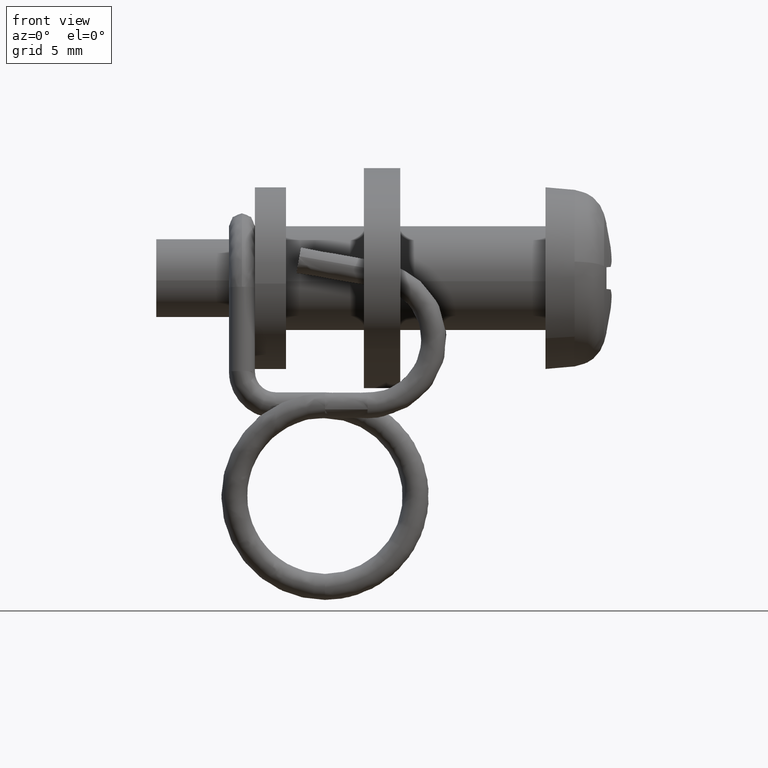
[diagram: clean part render]
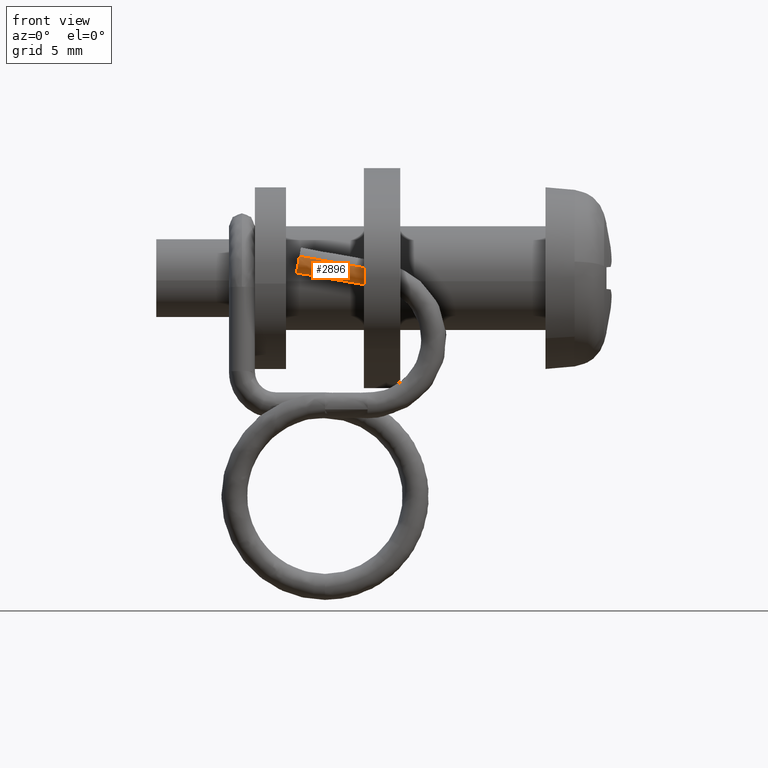
[diagram: same view with one face highlighted and labeled with its STEP entity id]
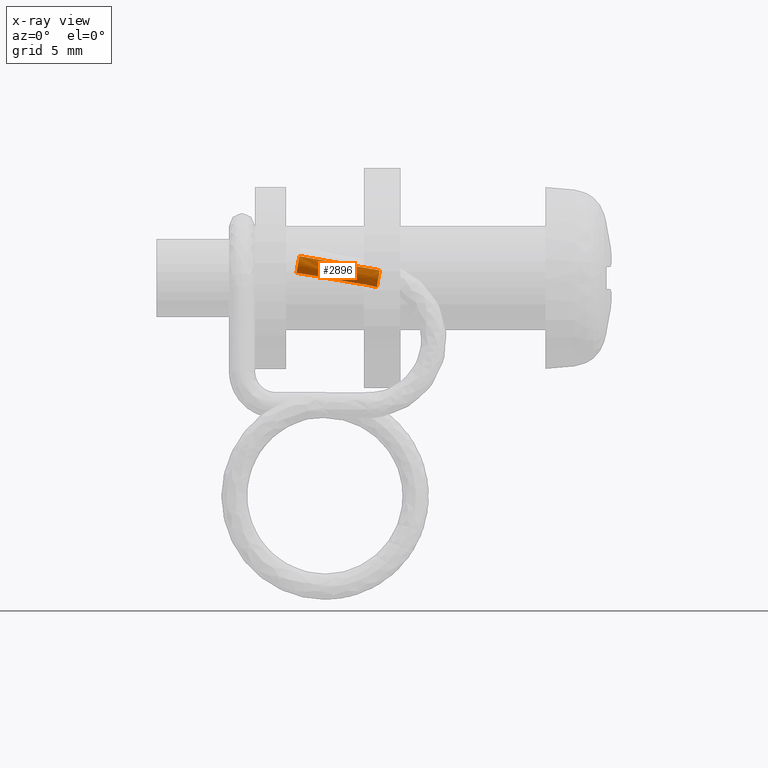
[diagram: x-ray of the same camera — body ghosted, the highlighted face saturated]
A machine part, front view. The second image highlights one B-rep face of the part: STEP entity #2896.
The next image is the same camera in x-ray: the body ghosted, the highlighted face saturated — about 0% of this face is hidden behind the body in this view.
In plain terms, the highlighted face is a freeform B-spline surface patch.
Its self-contained STEP definition (entity closure, byte-faithful):
#2686=CARTESIAN_POINT('',(-9.593723726786740,-4.278956213103814,0.230942369601642));
#2687=VERTEX_POINT('',#2686);
#2688=CARTESIAN_POINT('',(-9.485742573667952,-4.565768063297207,0.843767149737986));
#2689=VERTEX_POINT('',#2688);
#2690=CARTESIAN_POINT('',(-9.593723726786740,-4.278956213103814,0.230942369601642));
#2691=CARTESIAN_POINT('',(-9.563234315669838,-4.715046186978310,0.404514879092870));
#2692=CARTESIAN_POINT('',(-9.485742573667952,-4.565768063297207,0.843767149737986));
#2700=(BOUNDED_CURVE()B_SPLINE_CURVE(2,(#2690,#2691,#2692),.UNSPECIFIED.,.F.,.U.)B_SPLINE_CURVE_WITH_KNOTS((3,3),(0.0,0.239332771310247),.UNSPECIFIED.)CURVE()GEOMETRIC_REPRESENTATION_ITEM()RATIONAL_B_SPLINE_CURVE((1.0,0.719604216973591,0.976071632470520))REPRESENTATION_ITEM(''));
#2701=EDGE_CURVE('',#2687,#2689,#2700,.T.);
#2720=CARTESIAN_POINT('',(-9.540609303711973,-3.617467980443404,0.531170612980902));
#2721=VERTEX_POINT('',#2720);
#2735=CARTESIAN_POINT('',(-9.540609303711973,-3.617467980443404,0.531170612980902));
#2736=CARTESIAN_POINT('',(-9.543126171066522,-3.622316409792601,0.516904064419226));
#2737=CARTESIAN_POINT('',(-9.545587173177125,-3.628040212952389,0.502955665145589));
#2738=CARTESIAN_POINT('',(-9.626134961273946,-3.815378404186064,0.046429153387529));
#2739=CARTESIAN_POINT('',(-9.593723726786740,-4.278956213103814,0.230942369601642));
#2747=(BOUNDED_CURVE()B_SPLINE_CURVE(2,(#2735,#2736,#2737,#2738,#2739),.UNSPECIFIED.,.F.,.U.)B_SPLINE_CURVE_WITH_KNOTS((3,2,3),(0.739332771310455,0.750000000000000,1.0),.UNSPECIFIED.)CURVE()GEOMETRIC_REPRESENTATION_ITEM()RATIONAL_B_SPLINE_CURVE((0.976071632470965,0.987502564213199,1.0,0.707106781186548,1.0))REPRESENTATION_ITEM(''));
#2748=EDGE_CURVE('',#2721,#2687,#2747,.T.);
#2794=CARTESIAN_POINT('',(-6.388901196909250,-4.566524686647446,0.297688885898468));
#2795=VERTEX_POINT('',#2794);
#2807=CARTESIAN_POINT('',(-6.443760522140609,-3.618360234748804,-0.014865451289451));
#2808=VERTEX_POINT('',#2807);
#2816=CARTESIAN_POINT('',(-6.443760522140609,-3.618360234748804,-0.014865451289451));
#2817=CARTESIAN_POINT('',(-9.540609303711973,-3.617467980443404,0.531170612980902));
#2818=QUASI_UNIFORM_CURVE('',1,(#2816,#2817),.UNSPECIFIED.,.F.,.U.);
#2819=EDGE_CURVE('',#2808,#2721,#2818,.T.);
#2823=CARTESIAN_POINT('',(-6.388901196909250,-4.566524686647446,0.297688885898468));
#2824=CARTESIAN_POINT('',(-9.485742573667952,-4.565768063297207,0.843767149737986));
#2825=QUASI_UNIFORM_CURVE('',1,(#2823,#2824),.UNSPECIFIED.,.F.,.U.);
#2826=EDGE_CURVE('',#2795,#2689,#2825,.T.);
#2831=CARTESIAN_POINT('',(-6.366304047308030,-3.618186971171433,-0.028316705399063));
#2832=CARTESIAN_POINT('',(-6.393120766162486,-3.667267625193502,-0.180327823082227));
#2833=CARTESIAN_POINT('',(-6.413130237330899,-3.787694061289801,-0.293625390017197));
#2834=CARTESIAN_POINT('',(-6.426901986720364,-3.932346140325045,-0.371510491316865));
#2835=CARTESIAN_POINT('',(-6.429187064619587,-4.100574365965165,-0.384215824793501));
#2836=CARTESIAN_POINT('',(-6.412746862762512,-4.401258038067103,-0.290524803260772));
#2837=CARTESIAN_POINT('',(-6.391843732353269,-4.525487538077919,-0.171789658960313));
#2838=CARTESIAN_POINT('',(-6.367120834617956,-4.594072610417007,-0.031475542720456));
#2839=CARTESIAN_POINT('',(-6.337720606760845,-4.615933719741551,0.135294495487195));
#2840=CARTESIAN_POINT('',(-6.311424578907169,-4.566664945118926,0.284352342773734));
#2841=CARTESIAN_POINT('',(-7.450850601540298,-3.618119689250841,0.162885636432810));
#2842=CARTESIAN_POINT('',(-7.475878523241766,-3.672047279946746,0.021026612756482));
#2843=CARTESIAN_POINT('',(-7.499138205270571,-3.774178201906230,-0.110731444588589));
#2844=CARTESIAN_POINT('',(-7.512223101579422,-3.933198994713488,-0.184699513298204));
#2845=CARTESIAN_POINT('',(-7.514214735126892,-4.100575061519524,-0.195741927205369));
#2846=CARTESIAN_POINT('',(-7.496199798973377,-4.402058957378339,-0.093118932587158));
#2847=CARTESIAN_POINT('',(-7.478782554844792,-4.530936311977502,0.005853779108010));
#2848=CARTESIAN_POINT('',(-7.450565533824542,-4.609137022708063,0.165998577408353));
#2849=CARTESIAN_POINT('',(-7.421971824578903,-4.613385663254346,0.328168028420224));
#2850=CARTESIAN_POINT('',(-7.396006578889833,-4.566058395690586,0.475352847512067));
#2851=CARTESIAN_POINT('',(-8.535396641020936,-3.617646424266919,0.354090284610417));
#2852=CARTESIAN_POINT('',(-8.562211729388855,-3.666564838979750,0.202088168930909));
#2853=CARTESIAN_POINT('',(-8.583972219990931,-3.779024420995559,0.078848045687520));
#2854=CARTESIAN_POINT('',(-8.597467032272833,-3.929536509603175,0.002542380746253));
#2855=CARTESIAN_POINT('',(-8.599339935583089,-4.098407694509075,-0.007824422971801));
#2856=CARTESIAN_POINT('',(-8.581913346096274,-4.402703265113108,0.091466135876618));
#2857=CARTESIAN_POINT('',(-8.562156986431551,-4.530207706278453,0.203702562493735));
#2858=CARTESIAN_POINT('',(-8.536237596142744,-4.605501528786318,0.350812456308181));
#2859=CARTESIAN_POINT('',(-8.506892881375299,-4.618622960149274,0.517254468845496));
#2860=CARTESIAN_POINT('',(-8.480522823736747,-4.566039578831182,0.666727155636534));
#2861=CARTESIAN_POINT('',(-9.619926550342738,-3.617391279135244,0.545386740814547));
#2862=CARTESIAN_POINT('',(-9.646233946431273,-3.668030512944467,0.396266490166841));
#2863=CARTESIAN_POINT('',(-9.668402678409910,-3.777795122351971,0.270707045392999));
#2864=CARTESIAN_POINT('',(-9.681721239075541,-3.931195899177375,0.195405314715351));
#2865=CARTESIAN_POINT('',(-9.683650334421390,-4.099061172760036,0.184718311295325));
#2866=CARTESIAN_POINT('',(-9.666153882945256,-4.401475568305429,0.284402237099277));
#2867=CARTESIAN_POINT('',(-9.647135333841932,-4.528988796343003,0.392454343991474));
#2868=CARTESIAN_POINT('',(-9.620517272919921,-4.605454813244038,0.543528366945074));
#2869=CARTESIAN_POINT('',(-9.591366523057067,-4.616361493930598,0.708867005646299));
#2870=CARTESIAN_POINT('',(-9.565062899421104,-4.565651162215262,0.857965754301386));
#2871=B_SPLINE_SURFACE_WITH_KNOTS('',5,3,((#2831,#2841,#2851,#2861),(#2832,#2842,#2852,#2862),(#2833,#2843,#2853,#2863),(#2834,#2844,#2854,#2864),(#2835,#2845,#2855,#2865),(#2836,#2846,#2856,#2866),(#2837,#2847,#2857,#2867),(#2838,#2848,#2858,#2868),(#2839,#2849,#2859,#2869),(#2840,#2850,#2860,#2870)),.UNSPECIFIED.,.F.,.F.,.U.,(6,4,6),(4,4),(0.0,0.809867688400975,1.619735480222842),(0.0,3.303815319385206),.UNSPECIFIED.);
#2872=CARTESIAN_POINT('',(-6.496878647621730,-4.279780651932158,-0.315114794453433));
#2873=VERTEX_POINT('',#2872);
#2874=CARTESIAN_POINT('',(-6.496878647621730,-4.279780651932158,-0.315114794453433));
#2875=CARTESIAN_POINT('',(-6.480569089719424,-4.513059792827010,-0.222266459422019));
#2876=CARTESIAN_POINT('',(-6.430233571169757,-4.643724461839645,0.063397823042222));
#2877=CARTESIAN_POINT('',(-6.388901196909250,-4.566524686647446,0.297688885898468));
#2878=B_SPLINE_CURVE_WITH_KNOTS('',3,(#2874,#2875,#2876,#2877),.UNSPECIFIED.,.F.,.U.,(4,4),(0.0,0.240248661620843),.UNSPECIFIED.);
#2879=EDGE_CURVE('',#2873,#2795,#2878,.T.);
#2880=ORIENTED_EDGE('',*,*,#2879,.T.);
#2881=ORIENTED_EDGE('',*,*,#2826,.T.);
#2882=ORIENTED_EDGE('',*,*,#2701,.F.);
#2883=ORIENTED_EDGE('',*,*,#2748,.F.);
#2884=ORIENTED_EDGE('',*,*,#2819,.F.);
#2885=CARTESIAN_POINT('',(-6.443760522140609,-3.618360234748804,-0.014865451289451));
#2886=CARTESIAN_POINT('',(-6.445438064961213,-3.621495035836732,-0.024374539566546));
#2887=CARTESIAN_POINT('',(-6.447100775540933,-3.624972282363834,-0.033798992972879));
#2888=CARTESIAN_POINT('',(-6.490919506265059,-3.726906770017318,-0.282153544100285));
#2889=CARTESIAN_POINT('',(-6.513850064873251,-4.037035221193188,-0.411731013840280));
#2890=CARTESIAN_POINT('',(-6.496878647621730,-4.279780651932158,-0.315114794453433));
#2891=B_SPLINE_CURVE_WITH_KNOTS('',3,(#2885,#2886,#2887,#2888,#2889,#2890),.UNSPECIFIED.,.F.,.U.,(4,2,4),(0.740248661620844,0.750000000000000,1.0),.UNSPECIFIED.);
#2892=EDGE_CURVE('',#2808,#2873,#2891,.T.);
#2893=ORIENTED_EDGE('',*,*,#2892,.T.);
#2894=EDGE_LOOP('',(#2880,#2881,#2882,#2883,#2884,#2893));
#2895=FACE_OUTER_BOUND('',#2894,.T.);
#2896=ADVANCED_FACE('',(#2895),#2871,.T.);